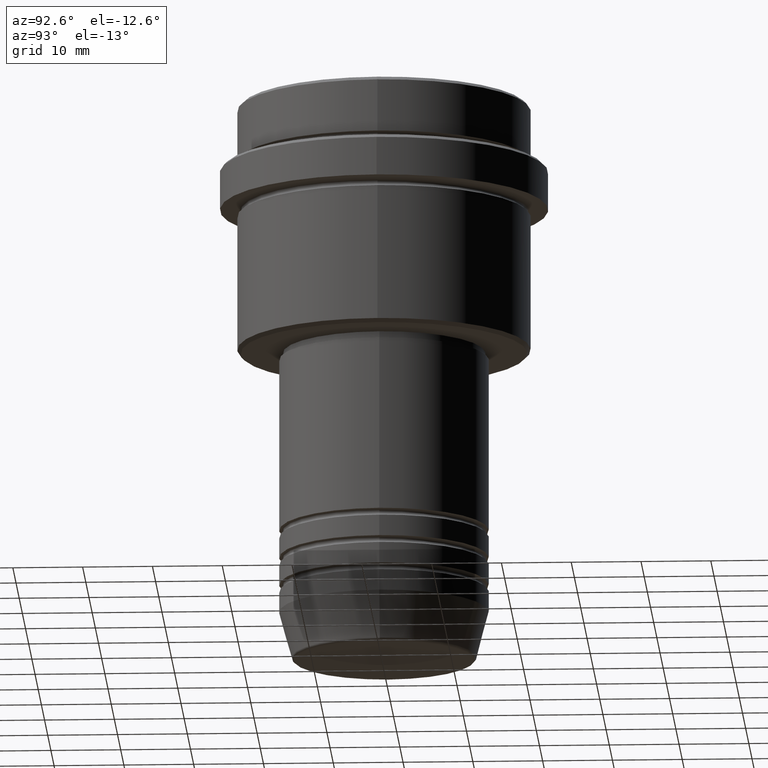
[diagram: clean part render]
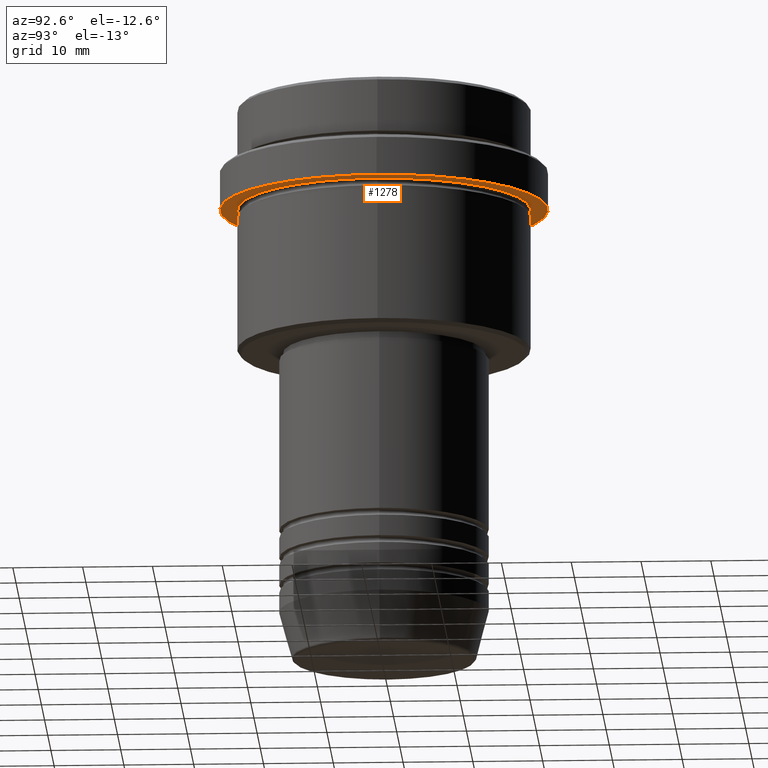
[diagram: same view with one face highlighted and labeled with its STEP entity id]
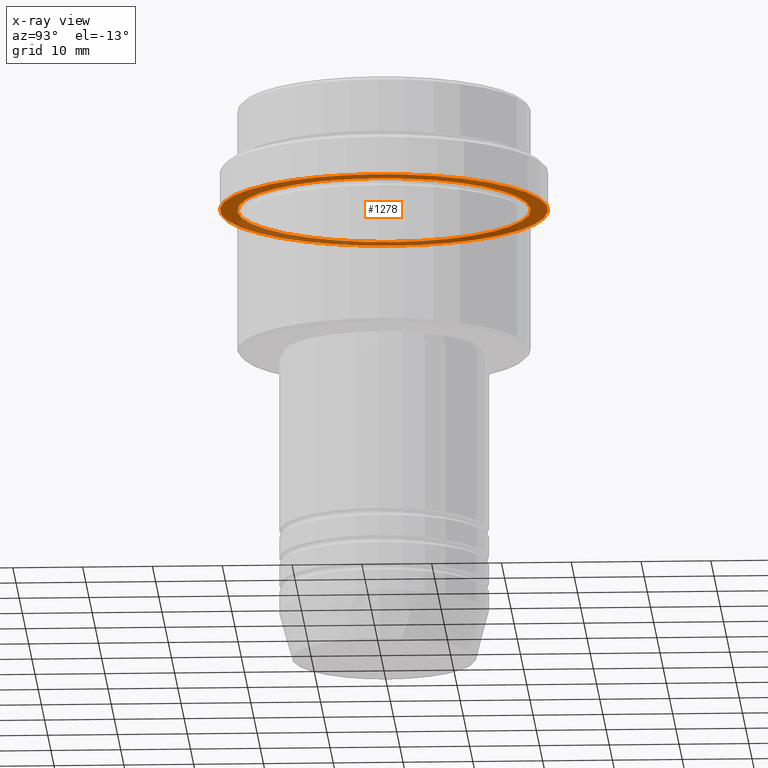
[diagram: x-ray of the same camera — body ghosted, the highlighted face saturated]
A machine part, auxiliary view. The second image highlights one B-rep face of the part: STEP entity #1278.
The next image is the same camera in x-ray: the body ghosted, the highlighted face saturated — about 39% of this face is hidden behind the body in this view.
In plain terms, the highlighted planar face has unit normal (0, 0, -1).
Its self-contained STEP definition (entity closure, byte-faithful):
#35 = VERTEX_POINT ( 'NONE', #1346 ) ;
#128 = EDGE_CURVE ( 'NONE', #35, #314, #530, .T. ) ;
#140 = DIRECTION ( 'NONE',  ( -0.000000000000000000, -0.000000000000000000, 1.000000000000000000 ) ) ;
#151 = DIRECTION ( 'NONE',  ( -1.000000000000000000, 0.000000000000000000, -0.000000000000000000 ) ) ;
#208 = CARTESIAN_POINT ( 'NONE',  ( -20.99999999999999289, 0.000000000000000000, -15.00000000000000178 ) ) ;
#218 = CARTESIAN_POINT ( 'NONE',  ( -23.50000000000000711, 2.877919977996281109E-15, -15.00000000000000000 ) ) ;
#268 = AXIS2_PLACEMENT_3D ( 'NONE', #627, #534, #943 ) ;
#313 = VERTEX_POINT ( 'NONE', #208 ) ;
#314 = VERTEX_POINT ( 'NONE', #218 ) ;
#322 = EDGE_CURVE ( 'NONE', #331, #313, #1005, .T. ) ;
#331 = VERTEX_POINT ( 'NONE', #1088 ) ;
#356 = AXIS2_PLACEMENT_3D ( 'NONE', #816, #140, #582 ) ;
#513 = CIRCLE ( 'NONE', #356, 23.50000000000000355 ) ;
#530 = CIRCLE ( 'NONE', #268, 23.50000000000000355 ) ;
#534 = DIRECTION ( 'NONE',  ( -0.000000000000000000, -0.000000000000000000, 1.000000000000000000 ) ) ;
#566 = DIRECTION ( 'NONE',  ( -0.000000000000000000, -0.000000000000000000, 1.000000000000000000 ) ) ;
#582 = DIRECTION ( 'NONE',  ( 1.000000000000000000, 0.000000000000000000, 0.000000000000000000 ) ) ;
#601 = PLANE ( 'NONE',  #1115 ) ;
#627 = CARTESIAN_POINT ( 'NONE',  ( 0.000000000000000000, 0.000000000000000000, -15.00000000000000000 ) ) ;
#654 = DIRECTION ( 'NONE',  ( -1.000000000000000000, 0.000000000000000000, 0.000000000000000000 ) ) ;
#661 = CARTESIAN_POINT ( 'NONE',  ( 0.000000000000000000, 0.000000000000000000, -15.00000000000000178 ) ) ;
#703 = ORIENTED_EDGE ( 'NONE', *, *, #1068, .T. ) ;
#773 = EDGE_LOOP ( 'NONE', ( #1006, #1364 ) ) ;
#816 = CARTESIAN_POINT ( 'NONE',  ( 0.000000000000000000, 0.000000000000000000, -15.00000000000000000 ) ) ;
#854 = EDGE_CURVE ( 'NONE', #314, #35, #513, .T. ) ;
#858 = CARTESIAN_POINT ( 'NONE',  ( 0.000000000000000000, 0.000000000000000000, -15.00000000000000178 ) ) ;
#895 = AXIS2_PLACEMENT_3D ( 'NONE', #661, #1199, #654 ) ;
#919 = FACE_BOUND ( 'NONE', #1197, .T. ) ;
#943 = DIRECTION ( 'NONE',  ( 1.000000000000000000, 0.000000000000000000, 0.000000000000000000 ) ) ;
#1005 = CIRCLE ( 'NONE', #895, 20.99999999999999289 ) ;
#1006 = ORIENTED_EDGE ( 'NONE', *, *, #128, .F. ) ;
#1018 = AXIS2_PLACEMENT_3D ( 'NONE', #858, #566, #1113 ) ;
#1026 = FACE_OUTER_BOUND ( 'NONE', #773, .T. ) ;
#1045 = CIRCLE ( 'NONE', #1018, 20.99999999999999289 ) ;
#1061 = ORIENTED_EDGE ( 'NONE', *, *, #322, .T. ) ;
#1068 = EDGE_CURVE ( 'NONE', #313, #331, #1045, .T. ) ;
#1088 = CARTESIAN_POINT ( 'NONE',  ( 20.99999999999999289, 2.571758278209440872E-15, -15.00000000000000178 ) ) ;
#1113 = DIRECTION ( 'NONE',  ( -1.000000000000000000, 0.000000000000000000, 0.000000000000000000 ) ) ;
#1115 = AXIS2_PLACEMENT_3D ( 'NONE', #1155, #1239, #151 ) ;
#1155 = CARTESIAN_POINT ( 'NONE',  ( 0.000000000000000000, 23.50000000000000355, -15.00000000000000178 ) ) ;
#1197 = EDGE_LOOP ( 'NONE', ( #703, #1061 ) ) ;
#1199 = DIRECTION ( 'NONE',  ( -0.000000000000000000, -0.000000000000000000, 1.000000000000000000 ) ) ;
#1239 = DIRECTION ( 'NONE',  ( 0.000000000000000000, 0.000000000000000000, -1.000000000000000000 ) ) ;
#1278 = ADVANCED_FACE ( 'NONE', ( #919, #1026 ), #601, .T. ) ;
#1346 = CARTESIAN_POINT ( 'NONE',  ( 23.50000000000000355, 0.000000000000000000, -15.00000000000000000 ) ) ;
#1364 = ORIENTED_EDGE ( 'NONE', *, *, #854, .F. ) ;